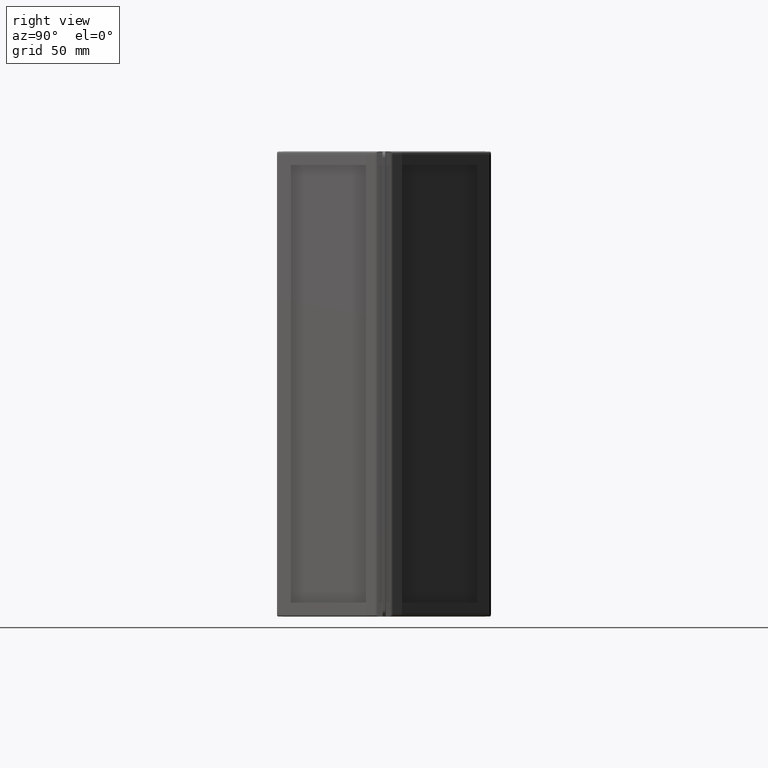
[diagram: clean part render]
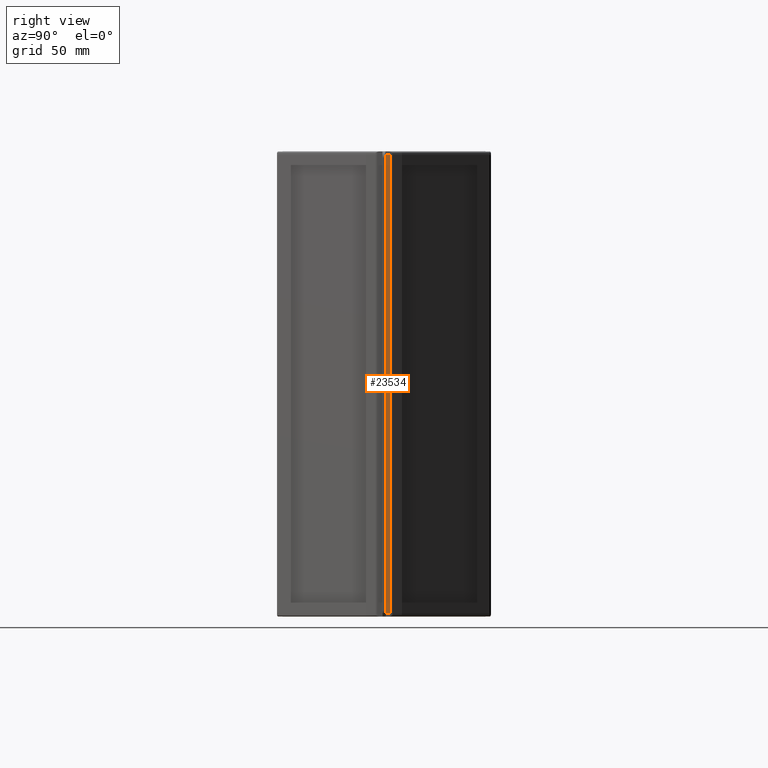
[diagram: same view with one face highlighted and labeled with its STEP entity id]
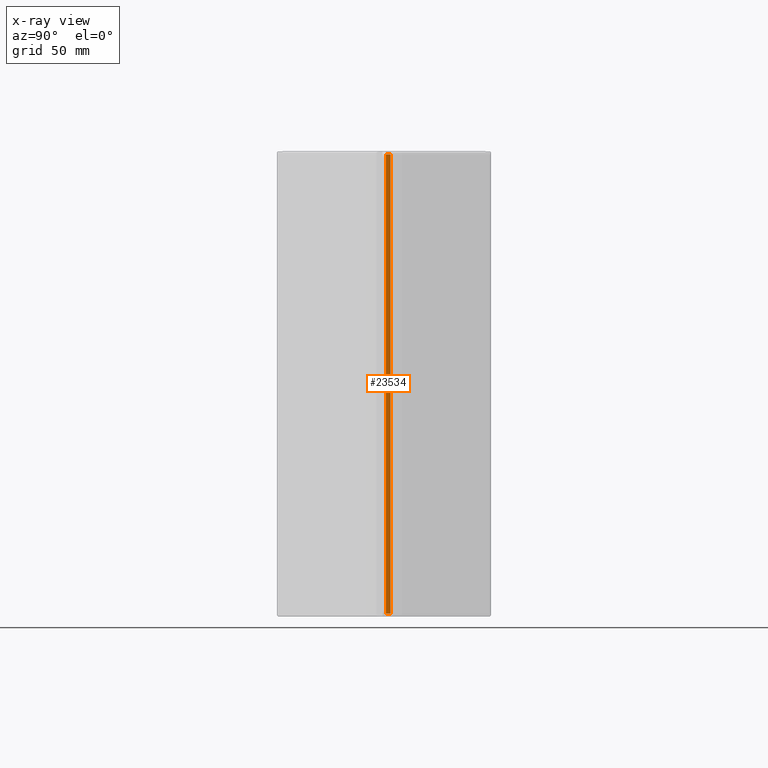
[diagram: x-ray of the same camera — body ghosted, the highlighted face saturated]
A machine part, right view. The second image highlights one B-rep face of the part: STEP entity #23534.
The next image is the same camera in x-ray: the body ghosted, the highlighted face saturated — about 0% of this face is hidden behind the body in this view.
In plain terms, the highlighted planar face has unit normal (1, 0, 0).
Its self-contained STEP definition (entity closure, byte-faithful):
#1509=PLANE('',#24899);
#1957=FACE_OUTER_BOUND('',#3273,.T.);
#3273=EDGE_LOOP('',(#14991,#14992,#14993,#14994));
#4663=LINE('',#32336,#6559);
#4681=LINE('',#32383,#6577);
#4686=LINE('',#32394,#6582);
#4701=LINE('',#32430,#6597);
#6559=VECTOR('',#26789,10.);
#6577=VECTOR('',#26827,10.);
#6582=VECTOR('',#26838,10.);
#6597=VECTOR('',#26871,10.);
#9105=VERTEX_POINT('',#32333);
#9106=VERTEX_POINT('',#32335);
#9125=VERTEX_POINT('',#32381);
#9128=VERTEX_POINT('',#32393);
#11373=EDGE_CURVE('',#9106,#9105,#4663,.T.);
#11397=EDGE_CURVE('',#9105,#9125,#4681,.T.);
#11402=EDGE_CURVE('',#9128,#9106,#4686,.T.);
#11421=EDGE_CURVE('',#9128,#9125,#4701,.T.);
#14991=ORIENTED_EDGE('',*,*,#11373,.T.);
#14992=ORIENTED_EDGE('',*,*,#11397,.T.);
#14993=ORIENTED_EDGE('',*,*,#11421,.F.);
#14994=ORIENTED_EDGE('',*,*,#11402,.T.);
#23534=ADVANCED_FACE('',(#1957),#1509,.T.);
#24899=AXIS2_PLACEMENT_3D('',#32429,#26869,#26870);
#26789=DIRECTION('',(0.,0.,-1.));
#26827=DIRECTION('',(0.,1.,0.));
#26838=DIRECTION('',(0.,-1.,0.));
#26869=DIRECTION('center_axis',(1.,0.,0.));
#26870=DIRECTION('ref_axis',(0.,0.,-1.));
#26871=DIRECTION('',(0.,0.,-1.));
#32333=CARTESIAN_POINT('',(158.360450658064,1.15,1.95));
#32335=CARTESIAN_POINT('',(158.360450658064,1.15,297.95));
#32336=CARTESIAN_POINT('',(158.360450658064,1.15,149.95));
#32381=CARTESIAN_POINT('',(158.360450658064,4.31428580021321,1.95000000000004));
#32383=CARTESIAN_POINT('',(158.360450658064,4.31428580021321,1.94999999999999));
#32393=CARTESIAN_POINT('',(158.360450658064,4.31428580021321,297.95));
#32394=CARTESIAN_POINT('',(158.360450658064,4.31428580021321,297.95));
#32429=CARTESIAN_POINT('Origin',(158.360450658064,-1.15000000000001,149.95));
#32430=CARTESIAN_POINT('',(158.360450658064,4.31428580021321,149.95));